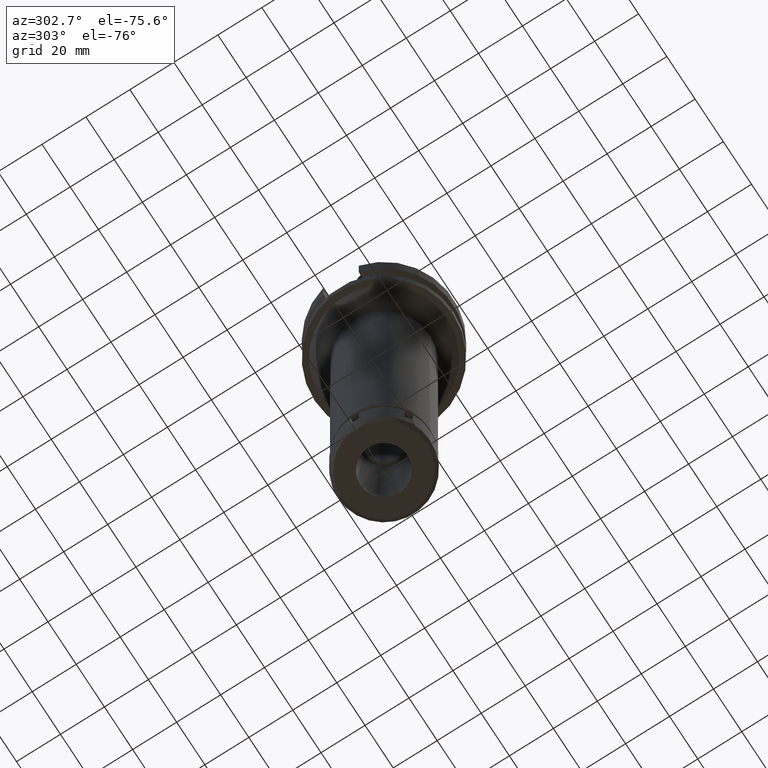
[diagram: clean part render]
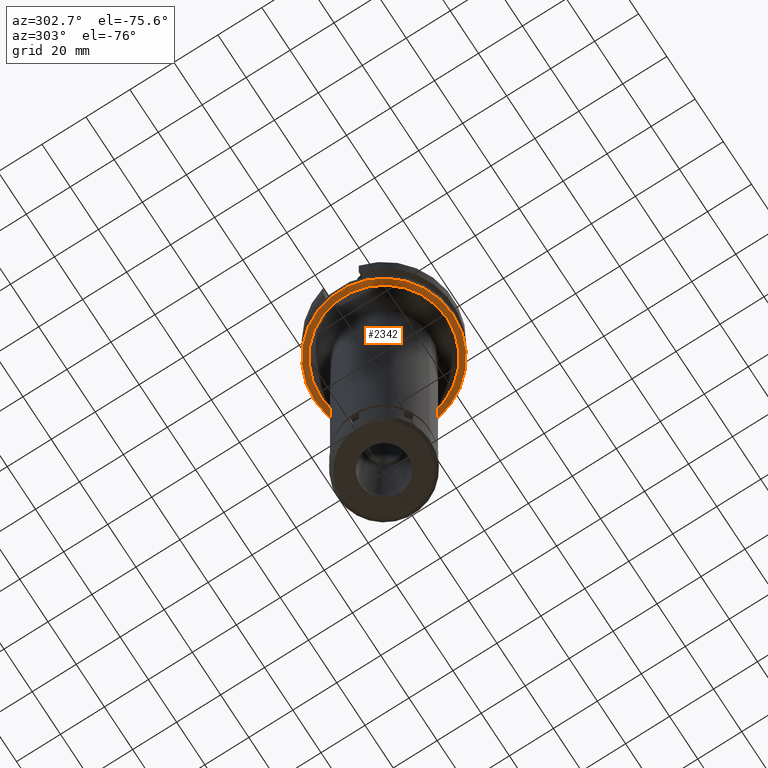
[diagram: same view with one face highlighted and labeled with its STEP entity id]
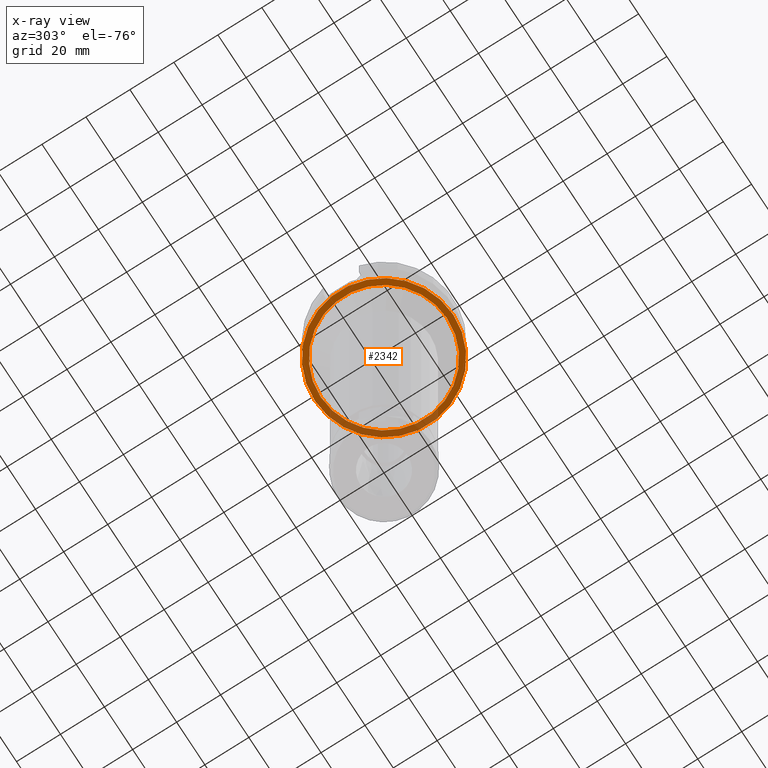
[diagram: x-ray of the same camera — body ghosted, the highlighted face saturated]
A machine part, auxiliary view. The second image highlights one B-rep face of the part: STEP entity #2342.
The next image is the same camera in x-ray: the body ghosted, the highlighted face saturated — about 24% of this face is hidden behind the body in this view.
In plain terms, the highlighted planar face has unit normal (0, 0, -1).
Its self-contained STEP definition (entity closure, byte-faithful):
#22 = FACE_BOUND ( 'NONE', #660, .T. ) ;
#57 = DIRECTION ( 'NONE',  ( 0.0000000000000000000, -1.000000000000000000, 0.0000000000000000000 ) ) ;
#69 = VERTEX_POINT ( 'NONE', #2684 ) ;
#71 = AXIS2_PLACEMENT_3D ( 'NONE', #2440, #1045, #3335 ) ;
#134 = DIRECTION ( 'NONE',  ( 0.0000000000000000000, -1.000000000000000000, 0.0000000000000000000 ) ) ;
#295 = FACE_OUTER_BOUND ( 'NONE', #643, .T. ) ;
#467 = DIRECTION ( 'NONE',  ( 0.0000000000000000000, 0.0000000000000000000, -1.000000000000000000 ) ) ;
#524 = ORIENTED_EDGE ( 'NONE', *, *, #2133, .F. ) ;
#643 = EDGE_LOOP ( 'NONE', ( #2387, #524 ) ) ;
#653 = CARTESIAN_POINT ( 'NONE',  ( 0.0000000000000000000, 31.50000000000000000, -27.00000000000000000 ) ) ;
#660 = EDGE_LOOP ( 'NONE', ( #2429, #1657 ) ) ;
#757 = DIRECTION ( 'NONE',  ( 0.0000000000000000000, -1.000000000000000000, 0.0000000000000000000 ) ) ;
#805 = DIRECTION ( 'NONE',  ( 0.0000000000000000000, 0.0000000000000000000, -1.000000000000000000 ) ) ;
#1009 = VERTEX_POINT ( 'NONE', #1426 ) ;
#1045 = DIRECTION ( 'NONE',  ( 0.0000000000000000000, 0.0000000000000000000, 1.000000000000000000 ) ) ;
#1099 = CIRCLE ( 'NONE', #2525, 31.50000000000000000 ) ;
#1102 = CIRCLE ( 'NONE', #71, 31.50000000000000000 ) ;
#1140 = VERTEX_POINT ( 'NONE', #1790 ) ;
#1239 = PLANE ( 'NONE',  #3193 ) ;
#1267 = EDGE_CURVE ( 'NONE', #2428, #69, #1102, .T. ) ;
#1357 = EDGE_CURVE ( 'NONE', #1009, #1140, #3313, .T. ) ;
#1408 = DIRECTION ( 'NONE',  ( 0.0000000000000000000, 1.000000000000000000, 0.0000000000000000000 ) ) ;
#1426 = CARTESIAN_POINT ( 'NONE',  ( 0.0000000000000000000, 28.75000000000000000, -27.00000000000000000 ) ) ;
#1657 = ORIENTED_EDGE ( 'NONE', *, *, #3083, .F. ) ;
#1736 = CARTESIAN_POINT ( 'NONE',  ( 0.0000000000000000000, 0.0000000000000000000, -27.00000000000000000 ) ) ;
#1790 = CARTESIAN_POINT ( 'NONE',  ( 0.0000000000000000000, -28.75000000000000000, -27.00000000000000000 ) ) ;
#1849 = CARTESIAN_POINT ( 'NONE',  ( 0.0000000000000000000, 2.183177848839999781E-14, -27.00000000000000000 ) ) ;
#2133 = EDGE_CURVE ( 'NONE', #69, #2428, #1099, .T. ) ;
#2342 = ADVANCED_FACE ( 'NONE', ( #295, #22 ), #1239, .T. ) ;
#2387 = ORIENTED_EDGE ( 'NONE', *, *, #1267, .F. ) ;
#2428 = VERTEX_POINT ( 'NONE', #653 ) ;
#2429 = ORIENTED_EDGE ( 'NONE', *, *, #1357, .F. ) ;
#2440 = CARTESIAN_POINT ( 'NONE',  ( 0.0000000000000000000, 2.183177848839999781E-14, -27.00000000000000000 ) ) ;
#2525 = AXIS2_PLACEMENT_3D ( 'NONE', #1849, #2963, #757 ) ;
#2646 = CARTESIAN_POINT ( 'NONE',  ( 0.0000000000000000000, 0.0000000000000000000, -27.00000000000000000 ) ) ;
#2684 = CARTESIAN_POINT ( 'NONE',  ( 0.0000000000000000000, -31.50000000000000000, -27.00000000000000000 ) ) ;
#2708 = AXIS2_PLACEMENT_3D ( 'NONE', #3301, #805, #1408 ) ;
#2771 = AXIS2_PLACEMENT_3D ( 'NONE', #2646, #467, #134 ) ;
#2875 = DIRECTION ( 'NONE',  ( 0.0000000000000000000, 0.0000000000000000000, -1.000000000000000000 ) ) ;
#2963 = DIRECTION ( 'NONE',  ( 0.0000000000000000000, 0.0000000000000000000, 1.000000000000000000 ) ) ;
#3083 = EDGE_CURVE ( 'NONE', #1140, #1009, #3490, .T. ) ;
#3193 = AXIS2_PLACEMENT_3D ( 'NONE', #1736, #2875, #57 ) ;
#3301 = CARTESIAN_POINT ( 'NONE',  ( 0.0000000000000000000, 0.0000000000000000000, -27.00000000000000000 ) ) ;
#3313 = CIRCLE ( 'NONE', #2708, 28.75000000000000000 ) ;
#3335 = DIRECTION ( 'NONE',  ( 0.0000000000000000000, 1.000000000000000000, 0.0000000000000000000 ) ) ;
#3490 = CIRCLE ( 'NONE', #2771, 28.75000000000000000 ) ;